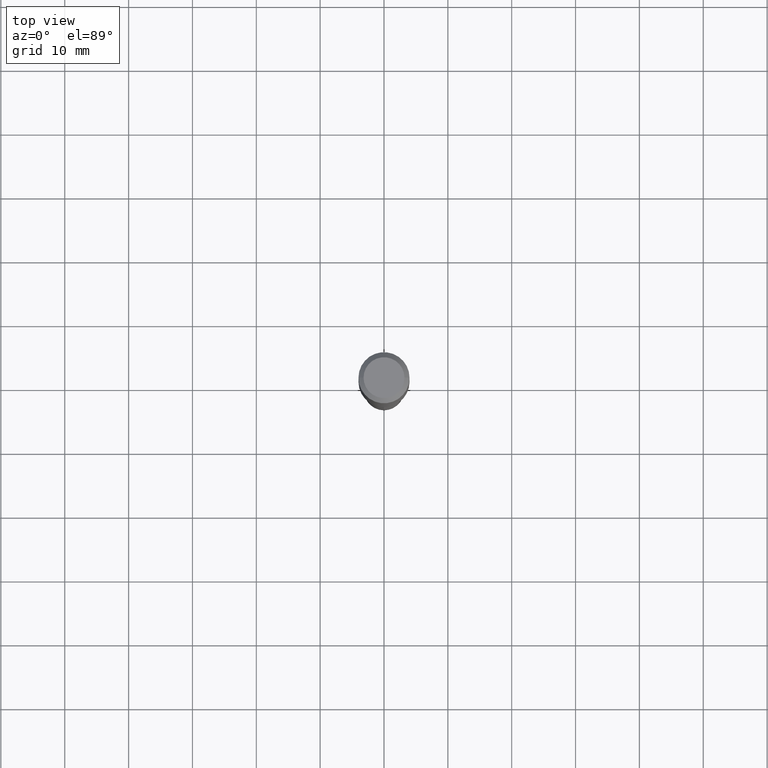
[diagram: clean part render]
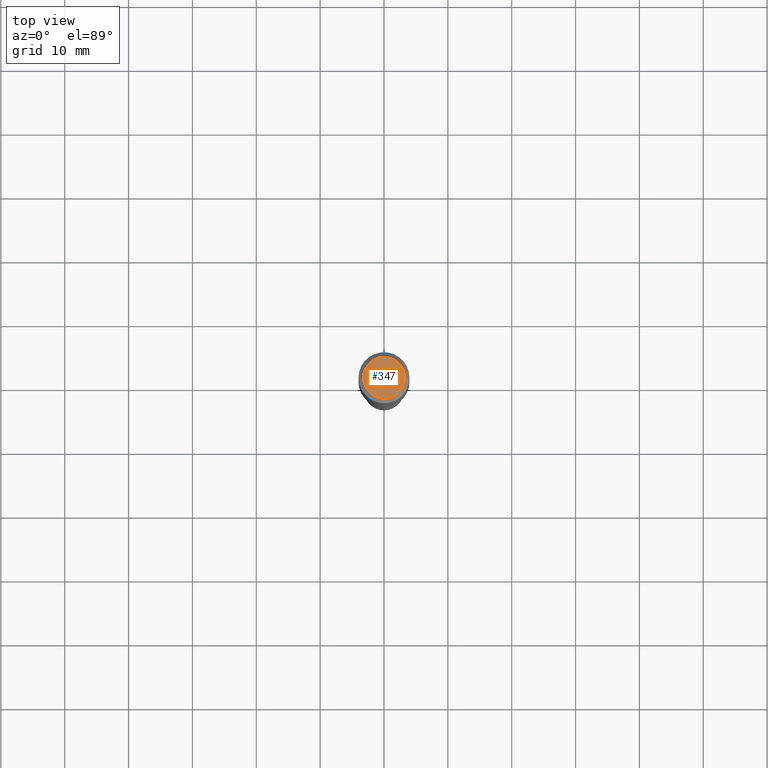
[diagram: same view with one face highlighted and labeled with its STEP entity id]
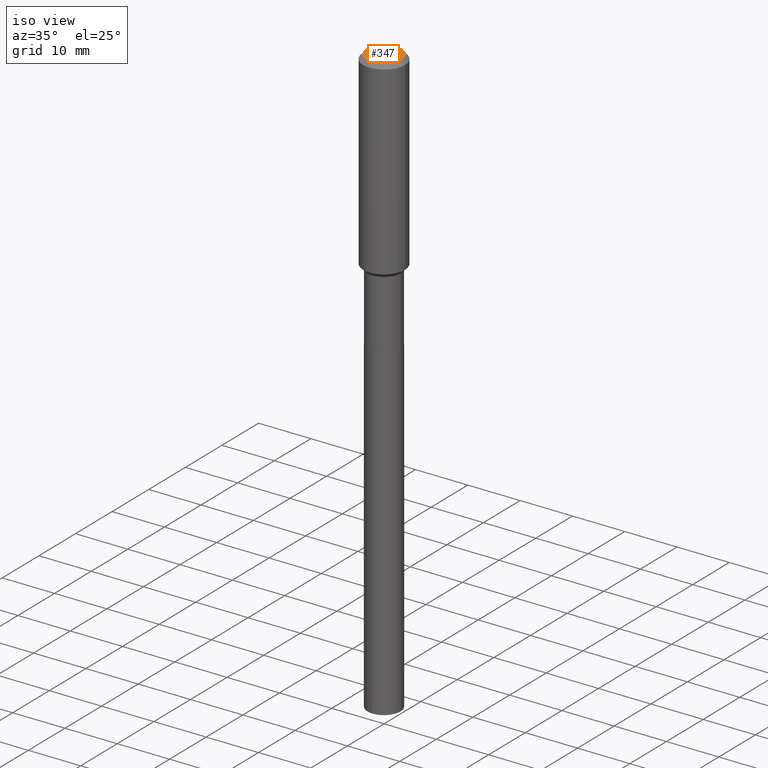
[diagram: same view with one face highlighted and labeled with its STEP entity id]
A machine part, top view. The second image highlights one B-rep face of the part: STEP entity #347.
A second angle (iso view) of the same face is appended — the face is thin or edge-on in the first view.
In plain terms, the highlighted planar face has unit normal (0, -0, -1).
Its self-contained STEP definition (entity closure, byte-faithful):
#36 = CARTESIAN_POINT ( 'NONE',  ( -4.719860820353100843E-47, 6.738710358733633822E-33, 1.930043355456229866E-18 ) ) ;
#47 = DIRECTION ( 'NONE',  ( -1.000000000000000000, 6.982962677686265922E-15, -4.876176775795935793E-29 ) ) ;
#70 = EDGE_CURVE ( 'NONE', #147, #457, #313, .T. ) ;
#82 = EDGE_CURVE ( 'NONE', #457, #147, #343, .T. ) ;
#94 = DIRECTION ( 'NONE',  ( 1.000000000000000000, -6.982962677686265922E-15, 4.876281427513067258E-29 ) ) ;
#119 = DIRECTION ( 'NONE',  ( 1.000000000000000000, -6.982962677686265922E-15, 4.876281427513067258E-29 ) ) ;
#147 = VERTEX_POINT ( 'NONE', #394 ) ;
#151 = ORIENTED_EDGE ( 'NONE', *, *, #82, .T. ) ;
#165 = DIRECTION ( 'NONE',  ( -2.445468806185136597E-29, 3.491481338843145583E-15, 1.000000000000000000 ) ) ;
#227 = ORIENTED_EDGE ( 'NONE', *, *, #70, .T. ) ;
#235 = FACE_OUTER_BOUND ( 'NONE', #377, .T. ) ;
#313 = CIRCLE ( 'NONE', #384, 0.1260000000000000009 ) ;
#319 = CARTESIAN_POINT ( 'NONE',  ( -9.439721640706201686E-47, 1.347742071746726764E-32, 3.860086710912459732E-18 ) ) ;
#343 = CIRCLE ( 'NONE', #462, 0.1260000000000000009 ) ;
#347 = ADVANCED_FACE ( 'NONE', ( #235 ), #378, .F. ) ;
#377 = EDGE_LOOP ( 'NONE', ( #151, #227 ) ) ;
#378 = PLANE ( 'NONE',  #385 ) ;
#384 = AXIS2_PLACEMENT_3D ( 'NONE', #319, #165, #94 ) ;
#385 = AXIS2_PLACEMENT_3D ( 'NONE', #36, #419, #47 ) ;
#394 = CARTESIAN_POINT ( 'NONE',  ( 0.1260000000000000009, -1.027466422270894443E-15, 3.860086710919128072E-18 ) ) ;
#419 = DIRECTION ( 'NONE',  ( 2.438088387897960049E-29, -3.491481338843145188E-15, -1.000000000000000000 ) ) ;
#457 = VERTEX_POINT ( 'NONE', #474 ) ;
#458 = DIRECTION ( 'NONE',  ( -2.445468806185136597E-29, 3.491481338843145583E-15, 1.000000000000000000 ) ) ;
#462 = AXIS2_PLACEMENT_3D ( 'NONE', #466, #458, #119 ) ;
#466 = CARTESIAN_POINT ( 'NONE',  ( -9.439721640706201686E-47, 1.347742071746726764E-32, 3.860086710912459732E-18 ) ) ;
#474 = CARTESIAN_POINT ( 'NONE',  ( -0.1260000000000000009, 9.348441284752484904E-16, 3.860086710906114178E-18 ) ) ;